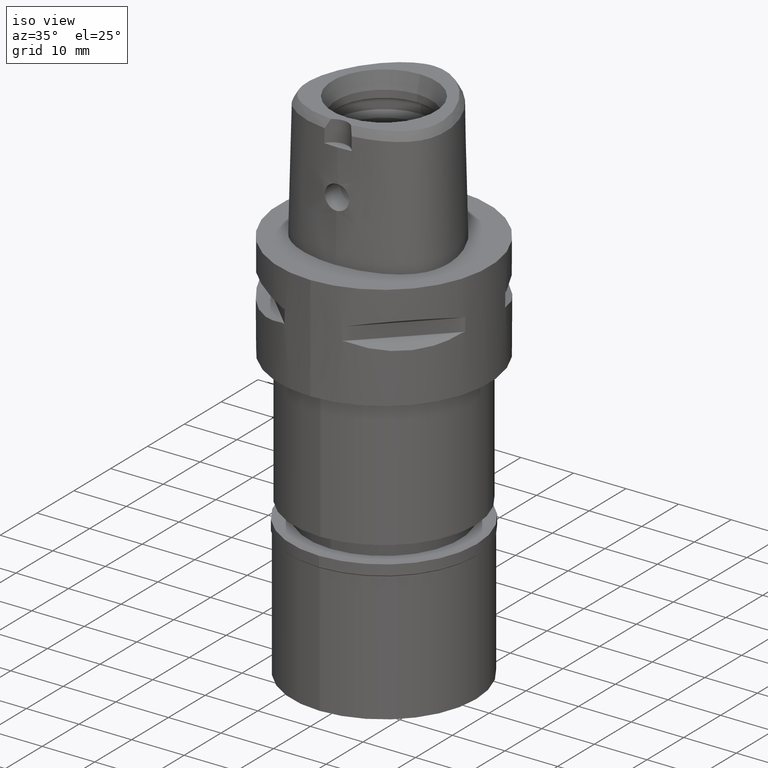
[diagram: clean part render]
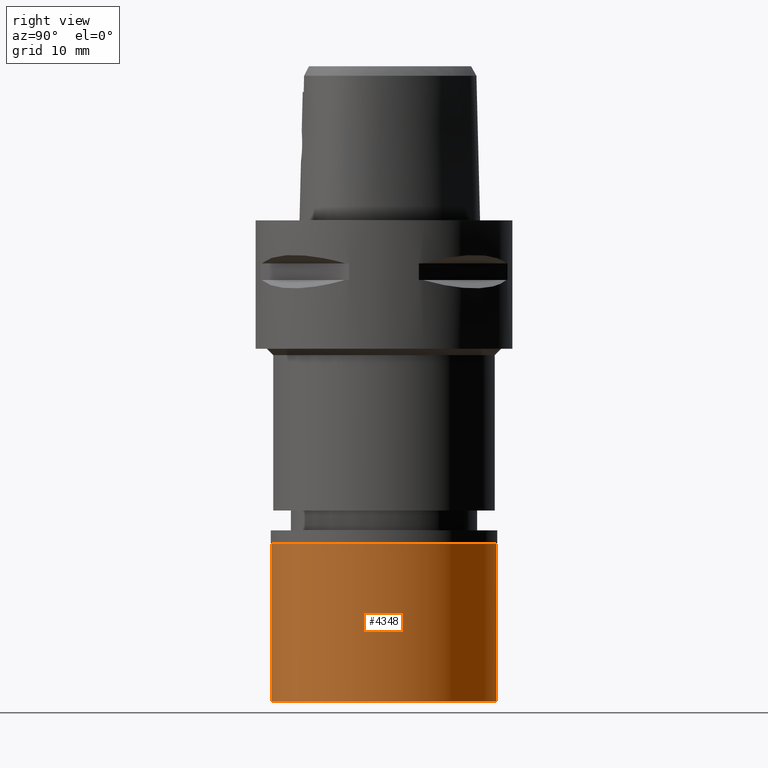
[diagram: tour spotlight — one face highlighted and labeled with its STEP entity id]
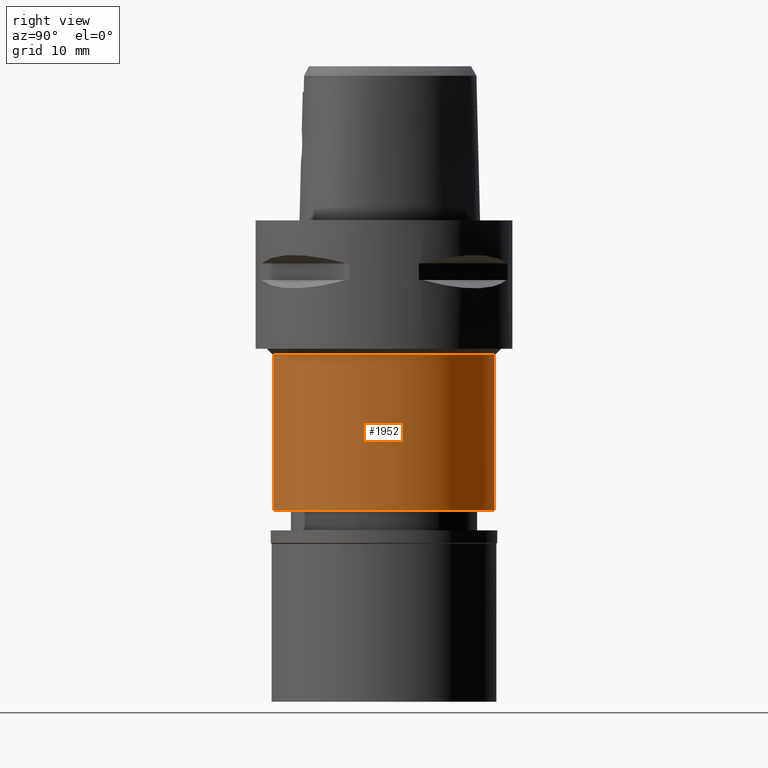
[diagram: tour spotlight — one face highlighted and labeled with its STEP entity id]
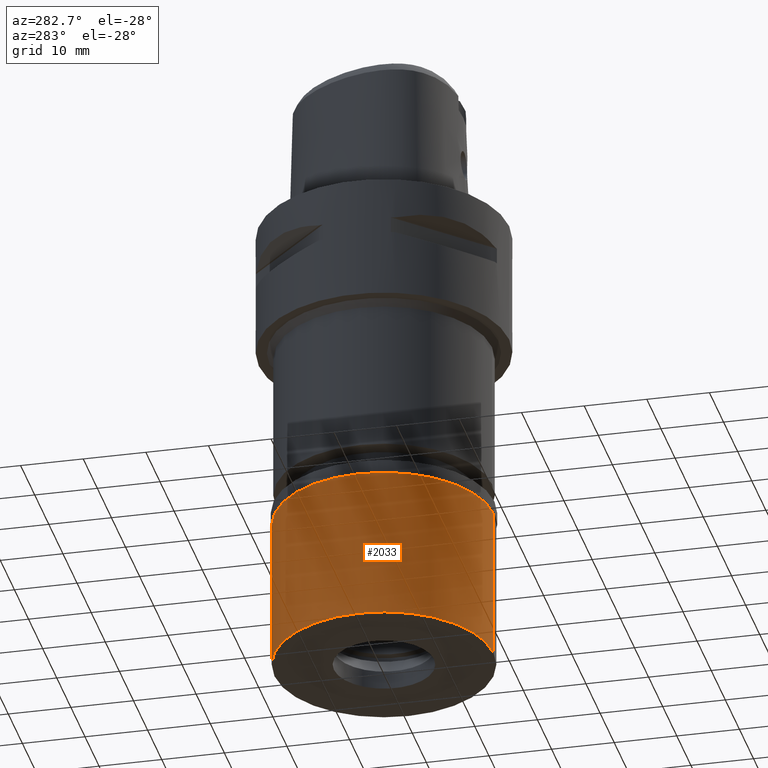
[diagram: tour spotlight — one face highlighted and labeled with its STEP entity id]
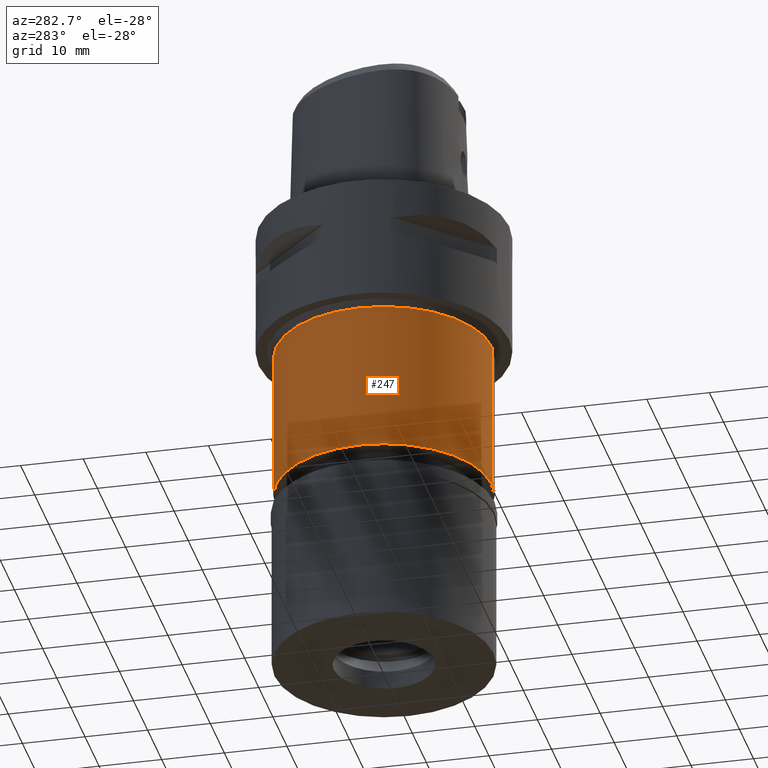
[diagram: tour spotlight — one face highlighted and labeled with its STEP entity id]
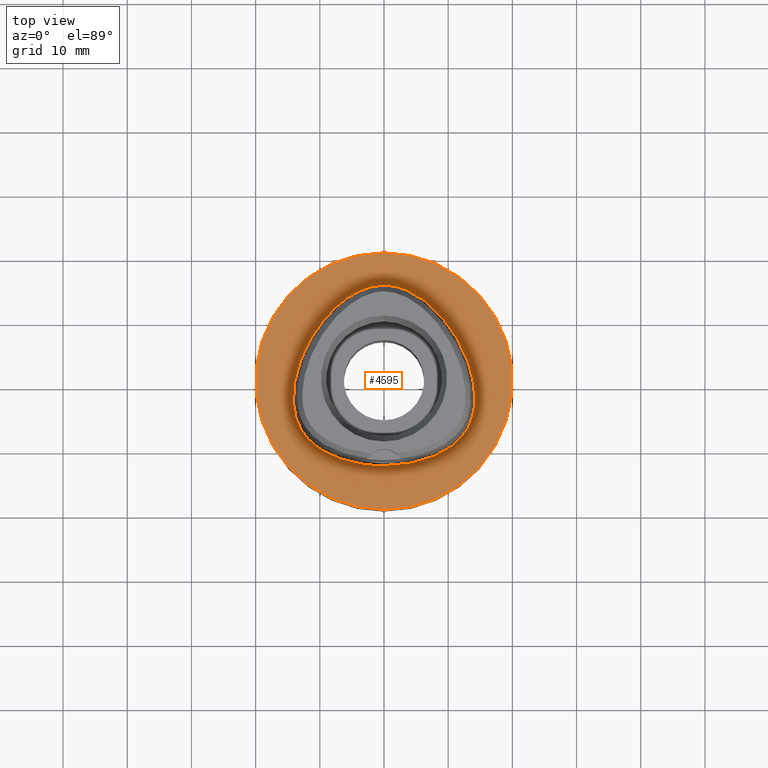
[diagram: tour spotlight — one face highlighted and labeled with its STEP entity id]
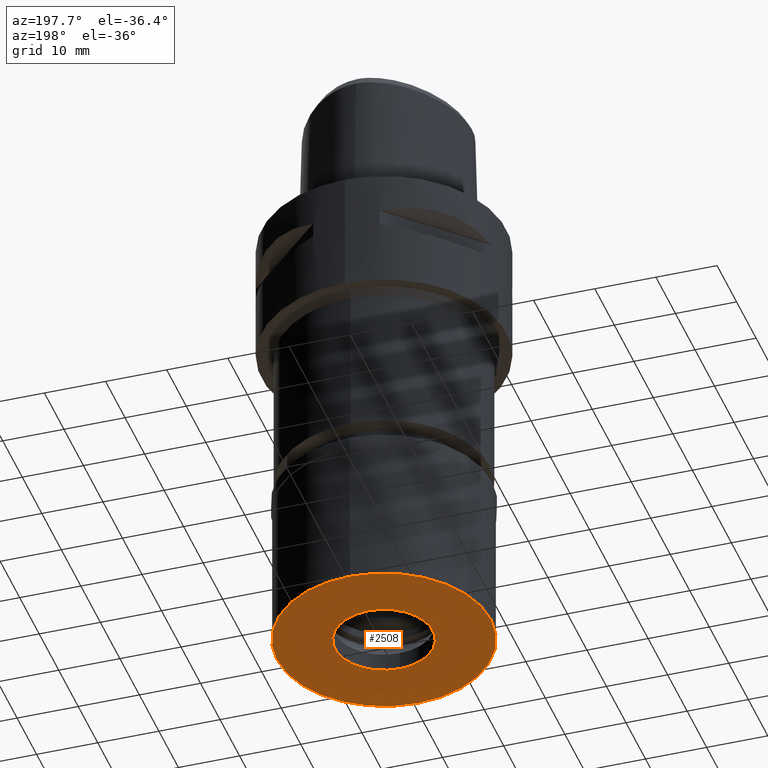
[diagram: tour spotlight — one face highlighted and labeled with its STEP entity id]
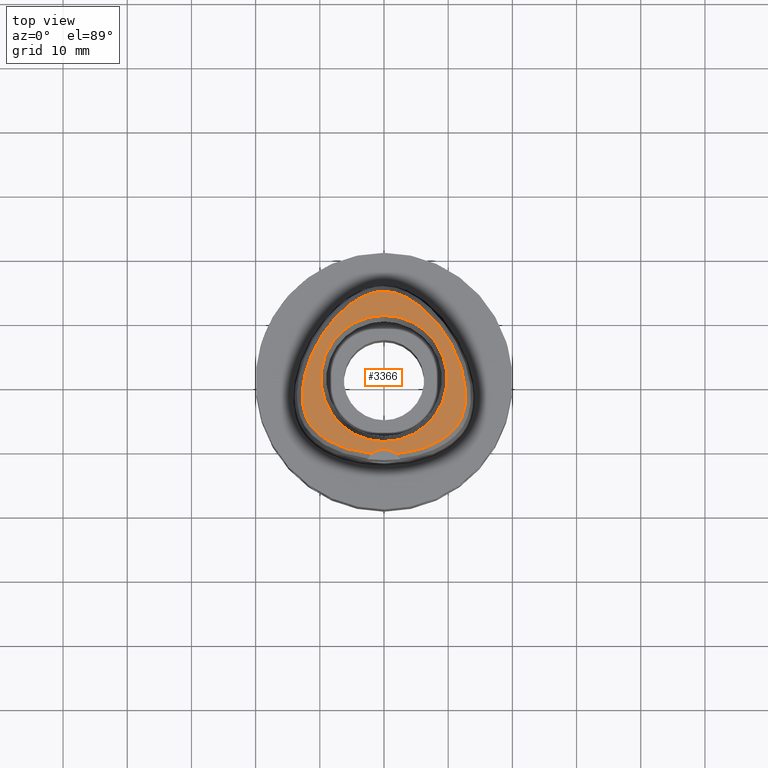
[diagram: tour spotlight — one face highlighted and labeled with its STEP entity id]
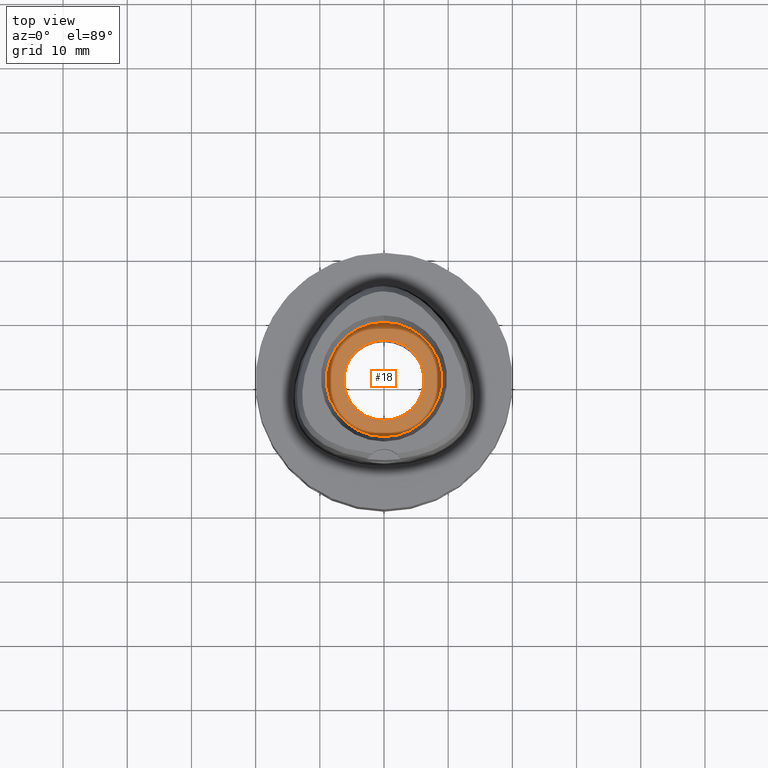
[diagram: tour spotlight — one face highlighted and labeled with its STEP entity id]
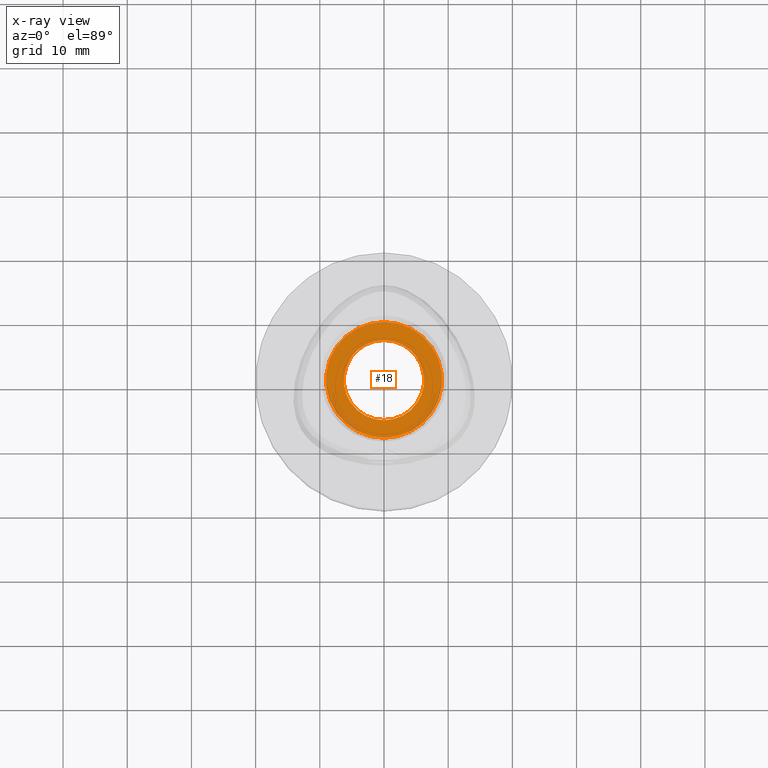
[diagram: x-ray of the same camera — body ghosted, this tour face saturated]
A machine part: a face-by-face anatomy tour. The part has 95 B-rep faces; the first image is the clean iso view, then the 8 largest visible faces are spotlighted one at a time (largest first), each with its STEP entity span.

Face 1 — right view, entity #4348. In plain terms, the highlighted cylindrical surface (partial cylindrical patch) has radius 17.5 mm, axis along (0, 0, -1).
Definition (entity closure, byte-faithful):
#294 = ORIENTED_EDGE ( 'NONE', *, *, #3732, .T. ) ;
#300 = DIRECTION ( 'NONE',  ( 0.0000000000000000000, 0.0000000000000000000, -1.000000000000000000 ) ) ;
#335 = DIRECTION ( 'NONE',  ( 0.0000000000000000000, -1.000000000000000000, 0.0000000000000000000 ) ) ;
#396 = AXIS2_PLACEMENT_3D ( 'NONE', #3628, #1329, #335 ) ;
#500 = DIRECTION ( 'NONE',  ( 0.0000000000000000000, 0.0000000000000000000, 1.000000000000000000 ) ) ;
#688 = VERTEX_POINT ( 'NONE', #4351 ) ;
#698 = FACE_OUTER_BOUND ( 'NONE', #1673, .T. ) ;
#843 = VERTEX_POINT ( 'NONE', #1810 ) ;
#1008 = LINE ( 'NONE', #3837, #2555 ) ;
#1185 = VECTOR ( 'NONE', #2618, 1000.000000000000000 ) ;
#1217 = ORIENTED_EDGE ( 'NONE', *, *, #2676, .T. ) ;
#1313 = EDGE_CURVE ( 'NONE', #2817, #4522, #1008, .T. ) ;
#1329 = DIRECTION ( 'NONE',  ( 0.0000000000000000000, 0.0000000000000000000, -1.000000000000000000 ) ) ;
#1425 = CIRCLE ( 'NONE', #1937, 17.50000000000000000 ) ;
#1494 = ORIENTED_EDGE ( 'NONE', *, *, #1313, .F. ) ;
#1673 = EDGE_LOOP ( 'NONE', ( #294, #1217, #2266, #1494 ) ) ;
#1810 = CARTESIAN_POINT ( 'NONE',  ( 0.0000000000000000000, -17.50000000000000000, -2.100000000000000089 ) ) ;
#1937 = AXIS2_PLACEMENT_3D ( 'NONE', #2263, #500, #2664 ) ;
#2117 = CYLINDRICAL_SURFACE ( 'NONE', #396, 17.50000000000000000 ) ;
#2263 = CARTESIAN_POINT ( 'NONE',  ( 0.0000000000000000000, 0.0000000000000000000, -26.70000000000000284 ) ) ;
#2266 = ORIENTED_EDGE ( 'NONE', *, *, #2538, .T. ) ;
#2538 = EDGE_CURVE ( 'NONE', #688, #4522, #1425, .T. ) ;
#2555 = VECTOR ( 'NONE', #4644, 1000.000000000000000 ) ;
#2618 = DIRECTION ( 'NONE',  ( 0.0000000000000000000, 0.0000000000000000000, -1.000000000000000000 ) ) ;
#2664 = DIRECTION ( 'NONE',  ( 0.0000000000000000000, -1.000000000000000000, 0.0000000000000000000 ) ) ;
#2676 = EDGE_CURVE ( 'NONE', #843, #688, #2994, .T. ) ;
#2817 = VERTEX_POINT ( 'NONE', #4613 ) ;
#2919 = CARTESIAN_POINT ( 'NONE',  ( 0.0000000000000000000, 17.50000000000000000, -26.70000000000000284 ) ) ;
#2994 = LINE ( 'NONE', #4453, #1185 ) ;
#3109 = AXIS2_PLACEMENT_3D ( 'NONE', #4364, #300, #3271 ) ;
#3271 = DIRECTION ( 'NONE',  ( 0.0000000000000000000, 1.000000000000000000, 0.0000000000000000000 ) ) ;
#3349 = CIRCLE ( 'NONE', #3109, 17.50000000000000000 ) ;
#3628 = CARTESIAN_POINT ( 'NONE',  ( 0.0000000000000000000, 0.0000000000000000000, 0.0000000000000000000 ) ) ;
#3732 = EDGE_CURVE ( 'NONE', #2817, #843, #3349, .T. ) ;
#3837 = CARTESIAN_POINT ( 'NONE',  ( 0.0000000000000000000, 17.50000000000000000, -2.100000000000000089 ) ) ;
#4348 = ADVANCED_FACE ( 'NONE', ( #698 ), #2117, .T. ) ;
#4351 = CARTESIAN_POINT ( 'NONE',  ( 0.0000000000000000000, -17.50000000000000000, -26.70000000000000284 ) ) ;
#4364 = CARTESIAN_POINT ( 'NONE',  ( 0.0000000000000000000, 0.0000000000000000000, -2.100000000000000089 ) ) ;
#4453 = CARTESIAN_POINT ( 'NONE',  ( 0.0000000000000000000, -17.50000000000000000, -2.100000000000000089 ) ) ;
#4522 = VERTEX_POINT ( 'NONE', #2919 ) ;
#4613 = CARTESIAN_POINT ( 'NONE',  ( 0.0000000000000000000, 17.50000000000000000, -2.100000000000000089 ) ) ;
#4644 = DIRECTION ( 'NONE',  ( 0.0000000000000000000, 0.0000000000000000000, -1.000000000000000000 ) ) ;

Face 2 — right view, entity #1952. In plain terms, the highlighted cylindrical surface (partial cylindrical patch) has radius 17.25 mm, axis along (0, 0, -1).
Definition (entity closure, byte-faithful):
#37 = CARTESIAN_POINT ( 'NONE',  ( 0.0000000000000000000, -17.25000000000000000, -21.00000000000000000 ) ) ;
#219 = VERTEX_POINT ( 'NONE', #1003 ) ;
#333 = LINE ( 'NONE', #2782, #4163 ) ;
#342 = ORIENTED_EDGE ( 'NONE', *, *, #1388, .T. ) ;
#674 = CARTESIAN_POINT ( 'NONE',  ( 0.0000000000000000000, 17.25000000000000000, -21.00000000000000000 ) ) ;
#802 = EDGE_CURVE ( 'NONE', #4314, #219, #333, .T. ) ;
#822 = DIRECTION ( 'NONE',  ( 0.0000000000000000000, -1.000000000000000000, 0.0000000000000000000 ) ) ;
#858 = EDGE_CURVE ( 'NONE', #1696, #219, #2095, .T. ) ;
#967 = DIRECTION ( 'NONE',  ( 0.0000000000000000000, 1.000000000000000000, 0.0000000000000000000 ) ) ;
#969 = DIRECTION ( 'NONE',  ( 0.0000000000000000000, -1.000000000000000000, 0.0000000000000000000 ) ) ;
#988 = VERTEX_POINT ( 'NONE', #37 ) ;
#1003 = CARTESIAN_POINT ( 'NONE',  ( 0.0000000000000000000, 17.25000000000000000, -45.19999999999999574 ) ) ;
#1128 = ORIENTED_EDGE ( 'NONE', *, *, #802, .F. ) ;
#1171 = CARTESIAN_POINT ( 'NONE',  ( 0.0000000000000000000, 1.263835496719999960E-14, 3.200000000000000178 ) ) ;
#1194 = CYLINDRICAL_SURFACE ( 'NONE', #1499, 17.25000000000000000 ) ;
#1327 = DIRECTION ( 'NONE',  ( 0.0000000000000000000, 0.0000000000000000000, 1.000000000000000000 ) ) ;
#1388 = EDGE_CURVE ( 'NONE', #988, #1696, #2256, .T. ) ;
#1424 = AXIS2_PLACEMENT_3D ( 'NONE', #2469, #3572, #967 ) ;
#1499 = AXIS2_PLACEMENT_3D ( 'NONE', #1171, #2623, #822 ) ;
#1562 = VECTOR ( 'NONE', #1772, 1000.000000000000000 ) ;
#1696 = VERTEX_POINT ( 'NONE', #3802 ) ;
#1740 = EDGE_CURVE ( 'NONE', #4314, #988, #2951, .T. ) ;
#1772 = DIRECTION ( 'NONE',  ( 0.0000000000000000000, 0.0000000000000000000, -1.000000000000000000 ) ) ;
#1952 = ADVANCED_FACE ( 'NONE', ( #3041 ), #1194, .T. ) ;
#2095 = CIRCLE ( 'NONE', #2624, 17.25000000000000000 ) ;
#2256 = LINE ( 'NONE', #2527, #1562 ) ;
#2469 = CARTESIAN_POINT ( 'NONE',  ( 0.0000000000000000000, 0.0000000000000000000, -21.00000000000000000 ) ) ;
#2527 = CARTESIAN_POINT ( 'NONE',  ( 0.0000000000000000000, -17.25000000000000000, -21.00000000000000000 ) ) ;
#2623 = DIRECTION ( 'NONE',  ( 0.0000000000000000000, 0.0000000000000000000, -1.000000000000000000 ) ) ;
#2624 = AXIS2_PLACEMENT_3D ( 'NONE', #3283, #1327, #969 ) ;
#2782 = CARTESIAN_POINT ( 'NONE',  ( 0.0000000000000000000, 17.25000000000000000, -21.00000000000000000 ) ) ;
#2951 = CIRCLE ( 'NONE', #1424, 17.25000000000000000 ) ;
#3041 = FACE_OUTER_BOUND ( 'NONE', #4606, .T. ) ;
#3160 = ORIENTED_EDGE ( 'NONE', *, *, #1740, .T. ) ;
#3203 = DIRECTION ( 'NONE',  ( 0.0000000000000000000, 0.0000000000000000000, -1.000000000000000000 ) ) ;
#3283 = CARTESIAN_POINT ( 'NONE',  ( 0.0000000000000000000, 1.263835496719999960E-14, -45.19999999999999574 ) ) ;
#3572 = DIRECTION ( 'NONE',  ( 0.0000000000000000000, 0.0000000000000000000, -1.000000000000000000 ) ) ;
#3802 = CARTESIAN_POINT ( 'NONE',  ( 0.0000000000000000000, -17.25000000000000000, -45.19999999999999574 ) ) ;
#4100 = ORIENTED_EDGE ( 'NONE', *, *, #858, .T. ) ;
#4163 = VECTOR ( 'NONE', #3203, 1000.000000000000000 ) ;
#4314 = VERTEX_POINT ( 'NONE', #674 ) ;
#4606 = EDGE_LOOP ( 'NONE', ( #3160, #342, #4100, #1128 ) ) ;

Face 3 — auxiliary view, entity #2033. In plain terms, the highlighted cylindrical surface (partial cylindrical patch) has radius 17.5 mm, axis along (0, 0, -1).
Definition (entity closure, byte-faithful):
#284 = EDGE_CURVE ( 'NONE', #843, #2817, #3864, .T. ) ;
#299 = DIRECTION ( 'NONE',  ( 0.0000000000000000000, 0.0000000000000000000, -1.000000000000000000 ) ) ;
#434 = AXIS2_PLACEMENT_3D ( 'NONE', #635, #299, #2482 ) ;
#635 = CARTESIAN_POINT ( 'NONE',  ( 0.0000000000000000000, 0.0000000000000000000, 0.0000000000000000000 ) ) ;
#688 = VERTEX_POINT ( 'NONE', #4351 ) ;
#843 = VERTEX_POINT ( 'NONE', #1810 ) ;
#1008 = LINE ( 'NONE', #3837, #2555 ) ;
#1045 = AXIS2_PLACEMENT_3D ( 'NONE', #3008, #4447, #4469 ) ;
#1185 = VECTOR ( 'NONE', #2618, 1000.000000000000000 ) ;
#1266 = ORIENTED_EDGE ( 'NONE', *, *, #284, .T. ) ;
#1313 = EDGE_CURVE ( 'NONE', #2817, #4522, #1008, .T. ) ;
#1339 = ORIENTED_EDGE ( 'NONE', *, *, #2676, .F. ) ;
#1340 = FACE_OUTER_BOUND ( 'NONE', #3197, .T. ) ;
#1810 = CARTESIAN_POINT ( 'NONE',  ( 0.0000000000000000000, -17.50000000000000000, -2.100000000000000089 ) ) ;
#2033 = ADVANCED_FACE ( 'NONE', ( #1340 ), #3894, .T. ) ;
#2417 = CARTESIAN_POINT ( 'NONE',  ( 0.0000000000000000000, 0.0000000000000000000, -26.70000000000000284 ) ) ;
#2482 = DIRECTION ( 'NONE',  ( 0.0000000000000000000, -1.000000000000000000, 0.0000000000000000000 ) ) ;
#2555 = VECTOR ( 'NONE', #4644, 1000.000000000000000 ) ;
#2563 = AXIS2_PLACEMENT_3D ( 'NONE', #2417, #3169, #4634 ) ;
#2618 = DIRECTION ( 'NONE',  ( 0.0000000000000000000, 0.0000000000000000000, -1.000000000000000000 ) ) ;
#2676 = EDGE_CURVE ( 'NONE', #843, #688, #2994, .T. ) ;
#2790 = CIRCLE ( 'NONE', #2563, 17.50000000000000000 ) ;
#2817 = VERTEX_POINT ( 'NONE', #4613 ) ;
#2919 = CARTESIAN_POINT ( 'NONE',  ( 0.0000000000000000000, 17.50000000000000000, -26.70000000000000284 ) ) ;
#2994 = LINE ( 'NONE', #4453, #1185 ) ;
#3008 = CARTESIAN_POINT ( 'NONE',  ( 0.0000000000000000000, 0.0000000000000000000, -2.100000000000000089 ) ) ;
#3169 = DIRECTION ( 'NONE',  ( 0.0000000000000000000, 0.0000000000000000000, 1.000000000000000000 ) ) ;
#3197 = EDGE_LOOP ( 'NONE', ( #4235, #1339, #1266, #3667 ) ) ;
#3333 = EDGE_CURVE ( 'NONE', #4522, #688, #2790, .T. ) ;
#3667 = ORIENTED_EDGE ( 'NONE', *, *, #1313, .T. ) ;
#3837 = CARTESIAN_POINT ( 'NONE',  ( 0.0000000000000000000, 17.50000000000000000, -2.100000000000000089 ) ) ;
#3864 = CIRCLE ( 'NONE', #1045, 17.50000000000000000 ) ;
#3894 = CYLINDRICAL_SURFACE ( 'NONE', #434, 17.50000000000000000 ) ;
#4235 = ORIENTED_EDGE ( 'NONE', *, *, #3333, .T. ) ;
#4351 = CARTESIAN_POINT ( 'NONE',  ( 0.0000000000000000000, -17.50000000000000000, -26.70000000000000284 ) ) ;
#4447 = DIRECTION ( 'NONE',  ( 0.0000000000000000000, 0.0000000000000000000, -1.000000000000000000 ) ) ;
#4453 = CARTESIAN_POINT ( 'NONE',  ( 0.0000000000000000000, -17.50000000000000000, -2.100000000000000089 ) ) ;
#4469 = DIRECTION ( 'NONE',  ( 0.0000000000000000000, -1.000000000000000000, 0.0000000000000000000 ) ) ;
#4522 = VERTEX_POINT ( 'NONE', #2919 ) ;
#4613 = CARTESIAN_POINT ( 'NONE',  ( 0.0000000000000000000, 17.50000000000000000, -2.100000000000000089 ) ) ;
#4634 = DIRECTION ( 'NONE',  ( 0.0000000000000000000, 1.000000000000000000, 0.0000000000000000000 ) ) ;
#4644 = DIRECTION ( 'NONE',  ( 0.0000000000000000000, 0.0000000000000000000, -1.000000000000000000 ) ) ;

Face 4 — auxiliary view, entity #247. In plain terms, the highlighted cylindrical surface (partial cylindrical patch) has radius 17.25 mm, axis along (0, 0, -1).
Definition (entity closure, byte-faithful):
#37 = CARTESIAN_POINT ( 'NONE',  ( 0.0000000000000000000, -17.25000000000000000, -21.00000000000000000 ) ) ;
#219 = VERTEX_POINT ( 'NONE', #1003 ) ;
#247 = ADVANCED_FACE ( 'NONE', ( #1770 ), #3233, .T. ) ;
#333 = LINE ( 'NONE', #2782, #4163 ) ;
#517 = CIRCLE ( 'NONE', #2578, 17.25000000000000000 ) ;
#674 = CARTESIAN_POINT ( 'NONE',  ( 0.0000000000000000000, 17.25000000000000000, -21.00000000000000000 ) ) ;
#802 = EDGE_CURVE ( 'NONE', #4314, #219, #333, .T. ) ;
#987 = CARTESIAN_POINT ( 'NONE',  ( 0.0000000000000000000, 0.0000000000000000000, -21.00000000000000000 ) ) ;
#988 = VERTEX_POINT ( 'NONE', #37 ) ;
#1003 = CARTESIAN_POINT ( 'NONE',  ( 0.0000000000000000000, 17.25000000000000000, -45.19999999999999574 ) ) ;
#1005 = ORIENTED_EDGE ( 'NONE', *, *, #2278, .T. ) ;
#1388 = EDGE_CURVE ( 'NONE', #988, #1696, #2256, .T. ) ;
#1469 = DIRECTION ( 'NONE',  ( 0.0000000000000000000, 1.000000000000000000, 0.0000000000000000000 ) ) ;
#1516 = DIRECTION ( 'NONE',  ( 0.0000000000000000000, 0.0000000000000000000, 1.000000000000000000 ) ) ;
#1562 = VECTOR ( 'NONE', #1772, 1000.000000000000000 ) ;
#1696 = VERTEX_POINT ( 'NONE', #3802 ) ;
#1770 = FACE_OUTER_BOUND ( 'NONE', #2444, .T. ) ;
#1772 = DIRECTION ( 'NONE',  ( 0.0000000000000000000, 0.0000000000000000000, -1.000000000000000000 ) ) ;
#1878 = CIRCLE ( 'NONE', #3344, 17.25000000000000000 ) ;
#2256 = LINE ( 'NONE', #2527, #1562 ) ;
#2278 = EDGE_CURVE ( 'NONE', #219, #1696, #1878, .T. ) ;
#2438 = DIRECTION ( 'NONE',  ( 0.0000000000000000000, 0.0000000000000000000, -1.000000000000000000 ) ) ;
#2444 = EDGE_LOOP ( 'NONE', ( #1005, #3122, #4658, #3238 ) ) ;
#2527 = CARTESIAN_POINT ( 'NONE',  ( 0.0000000000000000000, -17.25000000000000000, -21.00000000000000000 ) ) ;
#2556 = CARTESIAN_POINT ( 'NONE',  ( 0.0000000000000000000, 1.263835496719999960E-14, -45.19999999999999574 ) ) ;
#2578 = AXIS2_PLACEMENT_3D ( 'NONE', #987, #2438, #3193 ) ;
#2782 = CARTESIAN_POINT ( 'NONE',  ( 0.0000000000000000000, 17.25000000000000000, -21.00000000000000000 ) ) ;
#2864 = CARTESIAN_POINT ( 'NONE',  ( 0.0000000000000000000, 1.263835496719999960E-14, 3.200000000000000178 ) ) ;
#3122 = ORIENTED_EDGE ( 'NONE', *, *, #1388, .F. ) ;
#3193 = DIRECTION ( 'NONE',  ( 0.0000000000000000000, -1.000000000000000000, 0.0000000000000000000 ) ) ;
#3203 = DIRECTION ( 'NONE',  ( 0.0000000000000000000, 0.0000000000000000000, -1.000000000000000000 ) ) ;
#3233 = CYLINDRICAL_SURFACE ( 'NONE', #4334, 17.25000000000000000 ) ;
#3238 = ORIENTED_EDGE ( 'NONE', *, *, #802, .T. ) ;
#3344 = AXIS2_PLACEMENT_3D ( 'NONE', #2556, #1516, #1469 ) ;
#3353 = DIRECTION ( 'NONE',  ( 0.0000000000000000000, -1.000000000000000000, 0.0000000000000000000 ) ) ;
#3802 = CARTESIAN_POINT ( 'NONE',  ( 0.0000000000000000000, -17.25000000000000000, -45.19999999999999574 ) ) ;
#4163 = VECTOR ( 'NONE', #3203, 1000.000000000000000 ) ;
#4314 = VERTEX_POINT ( 'NONE', #674 ) ;
#4334 = AXIS2_PLACEMENT_3D ( 'NONE', #2864, #4335, #3353 ) ;
#4335 = DIRECTION ( 'NONE',  ( 0.0000000000000000000, 0.0000000000000000000, -1.000000000000000000 ) ) ;
#4635 = EDGE_CURVE ( 'NONE', #988, #4314, #517, .T. ) ;
#4658 = ORIENTED_EDGE ( 'NONE', *, *, #4635, .T. ) ;

Face 5 — top view, entity #4595. In plain terms, the highlighted planar face has unit normal (0, 0, -1).
Definition (entity closure, byte-faithful):
#178 = CARTESIAN_POINT ( 'NONE',  ( 13.73754042376662099, -5.736583205906158334, -3.900541807946855677E-07 ) ) ;
#205 = CARTESIAN_POINT ( 'NONE',  ( 13.34121472258864038, -6.760328910218635912, -3.900541807946855677E-07 ) ) ;
#212 = B_SPLINE_CURVE_WITH_KNOTS ( 'NONE', 3,
 ( #3782, #4516, #562, #3516, #2344, #3075, #234, #916, #538, #205, #178, #1637, #4538, #1302, #3098, #3151, #1226, #2658, #3803, #1615, #4564, #1273 ),
 .UNSPECIFIED., .F., .F.,
 ( 4, 1, 1, 1, 1, 1, 1, 1, 1, 1, 1, 1, 1, 1, 1, 1, 1, 1, 1, 4 ),
 ( 0.0000000000000000000, 0.08333333333314001112, 0.1666666666663000063, 0.2083333333328000192, 0.2499999999994000077, 0.2916666666659999962, 0.3124999999992999489, 0.3333333333325000369, 0.3541666666659000207, 0.3749999999990999977, 0.4166666666657000140, 0.4583333333321999992, 0.4999999999987999599, 0.5833333333318999614, 0.6666666666650999939, 0.7499999999983000265, 0.8333333333314000280, 0.9166666666646000605, 0.9583333333311000457, 1.000000000000000000 ),
 .UNSPECIFIED. ) ;
#234 = CARTESIAN_POINT ( 'NONE',  ( 11.83679699912663175, -9.028767389546919375, -3.900541807946855677E-07 ) ) ;
#384 = CARTESIAN_POINT ( 'NONE',  ( 1.395836783632000027E-10, 14.96299999995999919, 2.777037858929000335E-13 ) ) ;
#538 = CARTESIAN_POINT ( 'NONE',  ( 12.97089752338696478, -7.488751176760295891, -3.900541807946855677E-07 ) ) ;
#562 = CARTESIAN_POINT ( 'NONE',  ( 4.043386009453403318, -12.92392500964944801, -3.900541807946855677E-07 ) ) ;
#599 = EDGE_CURVE ( 'NONE', #1960, #1349, #212, .T. ) ;
#638 = PLANE ( 'NONE',  #3298 ) ;
#673 = CARTESIAN_POINT ( 'NONE',  ( -11.50301490204149957, 6.641268750185789216, -1.475856378297182858E-08 ) ) ;
#715 = CARTESIAN_POINT ( 'NONE',  ( -13.21414037081528292, 2.960287500126357330, -1.475856378297182858E-08 ) ) ;
#766 = CARTESIAN_POINT ( 'NONE',  ( -14.17320396628316104, -2.619206249997343861, -1.475856378297182858E-08 ) ) ;
#777 = CIRCLE ( 'NONE', #1290, 20.00000000000000000 ) ;
#807 = DIRECTION ( 'NONE',  ( 0.0000000000000000000, 1.000000000000000000, 0.0000000000000000000 ) ) ;
#825 = B_SPLINE_CURVE_WITH_KNOTS ( 'NONE', 3,
 ( #384, #2861, #2471, #2567, #4047, #4330, #673, #715, #2918, #766, #3647, #2116, #3253, #1048, #3053, #3627, #1918, #4490, #4464, #869, #1178, #3028 ),
 .UNSPECIFIED., .F., .F.,
 ( 4, 1, 1, 1, 1, 1, 1, 1, 1, 1, 1, 1, 1, 1, 1, 1, 1, 1, 1, 4 ),
 ( 0.0000000000000000000, 0.04166666667009000236, 0.08333333333660000730, 0.1666666666697000088, 0.2500000000027000069, 0.3333333333357000328, 0.4166666666688000342, 0.5000000000018000046, 0.5416666666684000209, 0.5833333333347999750, 0.6250000000013999912, 0.6458333333346000238, 0.6666666666680000075, 0.6875000000012000401, 0.7083333333343999616, 0.7500000000009999779, 0.7916666666675000741, 0.8333333333340000593, 0.9166666666671000607, 1.000000000000000000 ),
 .UNSPECIFIED. ) ;
#869 = CARTESIAN_POINT ( 'NONE',  ( -4.043386007794314452, -12.92392500037023950, -1.475856378297182858E-08 ) ) ;
#897 = DIRECTION ( 'NONE',  ( 0.0000000000000000000, -1.000000000000000000, 0.0000000000000000000 ) ) ;
#916 = CARTESIAN_POINT ( 'NONE',  ( 12.52522393548120760, -8.173666411995275993, -3.900541807946855677E-07 ) ) ;
#930 = FACE_BOUND ( 'NONE', #4248, .T. ) ;
#953 = AXIS2_PLACEMENT_3D ( 'NONE', #3655, #1437, #807 ) ;
#1048 = CARTESIAN_POINT ( 'NONE',  ( -12.97089751524858059, -7.488751172059896710, -1.475856378297182858E-08 ) ) ;
#1178 = CARTESIAN_POINT ( 'NONE',  ( -1.347795335935797922, -13.16300000036725670, -1.475856378297182858E-08 ) ) ;
#1226 = CARTESIAN_POINT ( 'NONE',  ( 9.170754370236878117, 9.963637506321751047, -3.900541807946855677E-07 ) ) ;
#1251 = CARTESIAN_POINT ( 'NONE',  ( 0.0000000000000000000, 1.263835496719999960E-14, 1.110223024624999873E-14 ) ) ;
#1273 = CARTESIAN_POINT ( 'NONE',  ( 1.395836783632000027E-10, 14.96299999995999919, 2.777037858929000335E-13 ) ) ;
#1283 = CARTESIAN_POINT ( 'NONE',  ( 1.395836783632000027E-10, 14.96299999995999919, 2.777037858929000335E-13 ) ) ;
#1290 = AXIS2_PLACEMENT_3D ( 'NONE', #1251, #4182, #897 ) ;
#1302 = CARTESIAN_POINT ( 'NONE',  ( 14.00068088981734249, -0.1863062482826050303, -3.900541807946855677E-07 ) ) ;
#1349 = VERTEX_POINT ( 'NONE', #1283 ) ;
#1437 = DIRECTION ( 'NONE',  ( 0.0000000000000000000, 0.0000000000000000000, -1.000000000000000000 ) ) ;
#1615 = CARTESIAN_POINT ( 'NONE',  ( 1.631981574167487681, 14.84698125959621429, -3.900541807946855677E-07 ) ) ;
#1637 = CARTESIAN_POINT ( 'NONE',  ( 14.05597390555121606, -4.368733595133075021, -3.900541807946855677E-07 ) ) ;
#1665 = EDGE_CURVE ( 'NONE', #3991, #3569, #1805, .T. ) ;
#1805 = CIRCLE ( 'NONE', #953, 20.00000000000000000 ) ;
#1918 = CARTESIAN_POINT ( 'NONE',  ( -10.81142122272220263, -9.988463672166119522, -1.475856378297182858E-08 ) ) ;
#1960 = VERTEX_POINT ( 'NONE', #2267 ) ;
#2002 = CARTESIAN_POINT ( 'NONE',  ( 0.0000000000000000000, 1.224646799146999965E-14, 0.0000000000000000000 ) ) ;
#2100 = EDGE_LOOP ( 'NONE', ( #2261, #4110 ) ) ;
#2116 = CARTESIAN_POINT ( 'NONE',  ( -13.73754041474015075, -5.736583203229367989, -1.475856378297182858E-08 ) ) ;
#2261 = ORIENTED_EDGE ( 'NONE', *, *, #1665, .F. ) ;
#2267 = CARTESIAN_POINT ( 'NONE',  ( -1.399837041540999886E-14, -13.16299999999999848, 2.770746595122999794E-13 ) ) ;
#2344 = CARTESIAN_POINT ( 'NONE',  ( 9.354901138038872688, -10.96475157100398690, -3.900541807946855677E-07 ) ) ;
#2471 = CARTESIAN_POINT ( 'NONE',  ( -1.631981572237633404, 14.84698125036252492, -1.475856378297182858E-08 ) ) ;
#2492 = ORIENTED_EDGE ( 'NONE', *, *, #2953, .F. ) ;
#2567 = CARTESIAN_POINT ( 'NONE',  ( -3.782076373942980574, 14.19393593783074081, -1.475856378297182858E-08 ) ) ;
#2658 = CARTESIAN_POINT ( 'NONE',  ( 6.372642527166862969, 12.66899063273053905, -3.900541807946855677E-07 ) ) ;
#2861 = CARTESIAN_POINT ( 'NONE',  ( -0.5439938573669350630, 14.96300000037487443, -1.475856378297182858E-08 ) ) ;
#2918 = CARTESIAN_POINT ( 'NONE',  ( -14.00068088052812421, -0.1863062499349895373, -1.475856378297182858E-08 ) ) ;
#2953 = EDGE_CURVE ( 'NONE', #1349, #1960, #825, .T. ) ;
#3028 = CARTESIAN_POINT ( 'NONE',  ( -1.399837041540999886E-14, -13.16299999999999848, 2.770746595122999794E-13 ) ) ;
#3053 = CARTESIAN_POINT ( 'NONE',  ( -12.52522392788794470, -8.173666406467122059, -1.475856378297182858E-08 ) ) ;
#3071 = CARTESIAN_POINT ( 'NONE',  ( 0.0000000000000000000, 20.00000000000000000, 1.110223024624999873E-14 ) ) ;
#3075 = CARTESIAN_POINT ( 'NONE',  ( 10.81142122852691756, -9.988463679579663079, -3.900541807946855677E-07 ) ) ;
#3098 = CARTESIAN_POINT ( 'NONE',  ( 13.21414037968383859, 2.960287503333003833, -3.900541807946855677E-07 ) ) ;
#3151 = CARTESIAN_POINT ( 'NONE',  ( 11.50301491020927891, 6.641268754898862703, -3.900541807946855677E-07 ) ) ;
#3253 = CARTESIAN_POINT ( 'NONE',  ( -13.34121471400117187, -6.760328906400068227, -1.475856378297182858E-08 ) ) ;
#3279 = CARTESIAN_POINT ( 'NONE',  ( 0.0000000000000000000, -20.00000000000000000, 1.110223024624999873E-14 ) ) ;
#3298 = AXIS2_PLACEMENT_3D ( 'NONE', #2002, #3476, #4246 ) ;
#3476 = DIRECTION ( 'NONE',  ( 0.0000000000000000000, 0.0000000000000000000, -1.000000000000000000 ) ) ;
#3516 = CARTESIAN_POINT ( 'NONE',  ( 7.161686388804775483, -12.03179219671646827, -3.900541807946855677E-07 ) ) ;
#3569 = VERTEX_POINT ( 'NONE', #3279 ) ;
#3604 = ORIENTED_EDGE ( 'NONE', *, *, #599, .F. ) ;
#3627 = CARTESIAN_POINT ( 'NONE',  ( -11.83679699228726356, -9.028767383067311414, -1.475856378297182858E-08 ) ) ;
#3647 = CARTESIAN_POINT ( 'NONE',  ( -14.05597389623452820, -4.368733593802287096, -1.475856378297182858E-08 ) ) ;
#3655 = CARTESIAN_POINT ( 'NONE',  ( 0.0000000000000000000, 1.263835496719999960E-14, 1.110223024624999873E-14 ) ) ;
#3782 = CARTESIAN_POINT ( 'NONE',  ( -1.399837041540999886E-14, -13.16299999999999848, 2.770746595122999794E-13 ) ) ;
#3803 = CARTESIAN_POINT ( 'NONE',  ( 3.782076377980236881, 14.19393594641559631, -3.900541807946855677E-07 ) ) ;
#3991 = VERTEX_POINT ( 'NONE', #3071 ) ;
#4047 = CARTESIAN_POINT ( 'NONE',  ( -6.372642521318883091, 12.66899062529355291, -1.475856378297182858E-08 ) ) ;
#4110 = ORIENTED_EDGE ( 'NONE', *, *, #4195, .F. ) ;
#4182 = DIRECTION ( 'NONE',  ( 0.0000000000000000000, 0.0000000000000000000, -1.000000000000000000 ) ) ;
#4195 = EDGE_CURVE ( 'NONE', #3569, #3991, #777, .T. ) ;
#4246 = DIRECTION ( 'NONE',  ( 0.0000000000000000000, -1.000000000000000000, 0.0000000000000000000 ) ) ;
#4248 = EDGE_LOOP ( 'NONE', ( #2492, #3604 ) ) ;
#4330 = CARTESIAN_POINT ( 'NONE',  ( -9.170754363024274269, 9.963637500239041600, -1.475856378297182858E-08 ) ) ;
#4464 = CARTESIAN_POINT ( 'NONE',  ( -7.161686385591480963, -12.03179218785227178, -1.475856378297182858E-08 ) ) ;
#4490 = CARTESIAN_POINT ( 'NONE',  ( -9.354901133390740142, -10.96475156281565511, -1.475856378297182858E-08 ) ) ;
#4516 = CARTESIAN_POINT ( 'NONE',  ( 1.347795336486731888, -13.16300000974633022, -3.900541807946856206E-07 ) ) ;
#4538 = CARTESIAN_POINT ( 'NONE',  ( 14.17320397569519130, -2.619206249931181674, -3.900541807946855677E-07 ) ) ;
#4564 = CARTESIAN_POINT ( 'NONE',  ( 0.5439938580388543610, 14.96300000976096634, -3.900541807946855677E-07 ) ) ;
#4595 = ADVANCED_FACE ( 'NONE', ( #4627, #930 ), #638, .F. ) ;
#4627 = FACE_OUTER_BOUND ( 'NONE', #2100, .T. ) ;

Face 6 — auxiliary view, entity #2508. In plain terms, the highlighted planar face has unit normal (0, 0, -1).
Definition (entity closure, byte-faithful):
#88 = EDGE_CURVE ( 'NONE', #3011, #145, #2631, .T. ) ;
#145 = VERTEX_POINT ( 'NONE', #628 ) ;
#163 = CARTESIAN_POINT ( 'NONE',  ( 0.0000000000000000000, 0.0000000000000000000, -26.70000000000000284 ) ) ;
#500 = DIRECTION ( 'NONE',  ( 0.0000000000000000000, 0.0000000000000000000, 1.000000000000000000 ) ) ;
#586 = AXIS2_PLACEMENT_3D ( 'NONE', #1511, #1462, #3969 ) ;
#628 = CARTESIAN_POINT ( 'NONE',  ( 0.0000000000000000000, -8.000000000000000000, -26.70000000000000284 ) ) ;
#688 = VERTEX_POINT ( 'NONE', #4351 ) ;
#811 = AXIS2_PLACEMENT_3D ( 'NONE', #163, #1233, #817 ) ;
#817 = DIRECTION ( 'NONE',  ( 0.0000000000000000000, -1.000000000000000000, 0.0000000000000000000 ) ) ;
#1233 = DIRECTION ( 'NONE',  ( 0.0000000000000000000, 0.0000000000000000000, -1.000000000000000000 ) ) ;
#1425 = CIRCLE ( 'NONE', #1937, 17.50000000000000000 ) ;
#1462 = DIRECTION ( 'NONE',  ( 0.0000000000000000000, 0.0000000000000000000, -1.000000000000000000 ) ) ;
#1511 = CARTESIAN_POINT ( 'NONE',  ( 0.0000000000000000000, 0.0000000000000000000, -26.70000000000000284 ) ) ;
#1540 = ORIENTED_EDGE ( 'NONE', *, *, #2735, .F. ) ;
#1937 = AXIS2_PLACEMENT_3D ( 'NONE', #2263, #500, #2664 ) ;
#2119 = DIRECTION ( 'NONE',  ( 0.0000000000000000000, 0.0000000000000000000, -1.000000000000000000 ) ) ;
#2229 = EDGE_LOOP ( 'NONE', ( #3477, #2616 ) ) ;
#2263 = CARTESIAN_POINT ( 'NONE',  ( 0.0000000000000000000, 0.0000000000000000000, -26.70000000000000284 ) ) ;
#2302 = FACE_OUTER_BOUND ( 'NONE', #2229, .T. ) ;
#2417 = CARTESIAN_POINT ( 'NONE',  ( 0.0000000000000000000, 0.0000000000000000000, -26.70000000000000284 ) ) ;
#2508 = ADVANCED_FACE ( 'NONE', ( #2302, #4122 ), #3423, .T. ) ;
#2538 = EDGE_CURVE ( 'NONE', #688, #4522, #1425, .T. ) ;
#2563 = AXIS2_PLACEMENT_3D ( 'NONE', #2417, #3169, #4634 ) ;
#2616 = ORIENTED_EDGE ( 'NONE', *, *, #2538, .F. ) ;
#2631 = CIRCLE ( 'NONE', #4554, 8.000000000000000000 ) ;
#2664 = DIRECTION ( 'NONE',  ( 0.0000000000000000000, -1.000000000000000000, 0.0000000000000000000 ) ) ;
#2735 = EDGE_CURVE ( 'NONE', #145, #3011, #3962, .T. ) ;
#2790 = CIRCLE ( 'NONE', #2563, 17.50000000000000000 ) ;
#2919 = CARTESIAN_POINT ( 'NONE',  ( 0.0000000000000000000, 17.50000000000000000, -26.70000000000000284 ) ) ;
#3011 = VERTEX_POINT ( 'NONE', #4088 ) ;
#3169 = DIRECTION ( 'NONE',  ( 0.0000000000000000000, 0.0000000000000000000, 1.000000000000000000 ) ) ;
#3333 = EDGE_CURVE ( 'NONE', #4522, #688, #2790, .T. ) ;
#3423 = PLANE ( 'NONE',  #811 ) ;
#3477 = ORIENTED_EDGE ( 'NONE', *, *, #3333, .F. ) ;
#3750 = ORIENTED_EDGE ( 'NONE', *, *, #88, .F. ) ;
#3916 = EDGE_LOOP ( 'NONE', ( #3750, #1540 ) ) ;
#3962 = CIRCLE ( 'NONE', #586, 8.000000000000000000 ) ;
#3969 = DIRECTION ( 'NONE',  ( 0.0000000000000000000, -1.000000000000000000, 0.0000000000000000000 ) ) ;
#4088 = CARTESIAN_POINT ( 'NONE',  ( 0.0000000000000000000, 8.000000000000000000, -26.70000000000000284 ) ) ;
#4122 = FACE_BOUND ( 'NONE', #3916, .T. ) ;
#4351 = CARTESIAN_POINT ( 'NONE',  ( 0.0000000000000000000, -17.50000000000000000, -26.70000000000000284 ) ) ;
#4356 = CARTESIAN_POINT ( 'NONE',  ( 0.0000000000000000000, 0.0000000000000000000, -26.70000000000000284 ) ) ;
#4522 = VERTEX_POINT ( 'NONE', #2919 ) ;
#4554 = AXIS2_PLACEMENT_3D ( 'NONE', #4356, #2119, #4686 ) ;
#4634 = DIRECTION ( 'NONE',  ( 0.0000000000000000000, 1.000000000000000000, 0.0000000000000000000 ) ) ;
#4686 = DIRECTION ( 'NONE',  ( 0.0000000000000000000, 1.000000000000000000, 0.0000000000000000000 ) ) ;

Face 7 — top view, entity #3366. In plain terms, the highlighted planar face has unit normal (0, 0, 1).
Definition (entity closure, byte-faithful):
#20 = CARTESIAN_POINT ( 'NONE',  ( 5.780202704591722807, -10.95235643153879401, 23.99999999999421618 ) ) ;
#154 = CARTESIAN_POINT ( 'NONE',  ( -7.606300872726083462, 9.460291049260074914, 23.99999999999360512 ) ) ;
#174 = CARTESIAN_POINT ( 'NONE',  ( -9.776246037422092527, 6.601694411330491619, 24.00000000000058265 ) ) ;
#180 = CARTESIAN_POINT ( 'NONE',  ( 10.97862720533561820, 4.421873472737205546, 23.99999999999442934 ) ) ;
#201 = CARTESIAN_POINT ( 'NONE',  ( -12.42392521664293525, -5.185948956749419025, 24.00000000000184031 ) ) ;
#229 = CARTESIAN_POINT ( 'NONE',  ( -5.360644550569196198, 11.51697883926216903, 24.00000000000338929 ) ) ;
#259 = CARTESIAN_POINT ( 'NONE',  ( 1.005831379202824394, 13.49945263943170737, 23.99999999999451816 ) ) ;
#286 = CARTESIAN_POINT ( 'NONE',  ( -1.335416903109999980E-10, 13.57127880780999796, 24.00000000000000000 ) ) ;
#334 = CARTESIAN_POINT ( 'NONE',  ( 10.11006658375692879, -8.714727269572012602, 23.99999999999301892 ) ) ;
#356 = CARTESIAN_POINT ( 'NONE',  ( 3.643846516944623026, -11.46587366694312315, 23.99999999999901235 ) ) ;
#490 = DIRECTION ( 'NONE',  ( 0.0000000000000000000, -1.000000000000000000, 0.0000000000000000000 ) ) ;
#512 = CARTESIAN_POINT ( 'NONE',  ( -2.102339319506137283, 13.24427330329941022, 23.99999999999944578 ) ) ;
#534 = CARTESIAN_POINT ( 'NONE',  ( -0.1649659295969236605, 13.57127880780184626, 24.00000000000596145 ) ) ;
#540 = CARTESIAN_POINT ( 'NONE',  ( 9.085466894421047712, 7.629604351704988296, 23.99999999999802469 ) ) ;
#558 = CARTESIAN_POINT ( 'NONE',  ( -8.320010339569906321, -9.910347637802873422, 24.00000000000130385 ) ) ;
#577 = EDGE_CURVE ( 'NONE', #1651, #4057, #2958, .T. ) ;
#587 = CARTESIAN_POINT ( 'NONE',  ( -6.094907065610477126, 10.92800604362946437, 23.99999999999646505 ) ) ;
#588 = B_SPLINE_CURVE_WITH_KNOTS ( 'NONE', 3,
 ( #3933, #4231, #624, #259, #3574, #941, #595, #2068, #1714, #3077, #2345, #4539, #1274, #2040, #1250, #540, #1991, #3465, #180, #1639, #1406, #1767, #2522, #3600, #3284, #1094, #1072, #2215, #1812, #4004, #3697, #3309, #2159, #4664, #3230, #3206, #1432, #334, #4024, #4310, #1481, #1837, #4709, #20, #1384, #356, #3983, #1744, #2941 ),
 .UNSPECIFIED., .F., .F.,
 ( 4, 1, 1, 1, 1, 1, 1, 1, 1, 1, 1, 1, 1, 1, 1, 1, 1, 1, 1, 1, 1, 1, 1, 1, 1, 1, 1, 1, 1, 1, 1, 1, 1, 1, 1, 1, 1, 1, 1, 1, 1, 1, 1, 1, 1, 1, 4 ),
 ( 0.0000000000000000000, 0.02199885823280001151, 0.04399771645910000029, 0.06599657468529995796, 0.08799543291160005776, 0.1099942911379000465, 0.1319931493642000353, 0.1539920075905000241, 0.1759908658166000617, 0.1979897240429000504, 0.2199885822692000392, 0.2419874404955000280, 0.2639862987218000168, 0.2859851569481000055, 0.3079840151743000742, 0.3299828734006000630, 0.3519817316269000518, 0.3739805898531999295, 0.3959794480795000293, 0.4179783063057000980, 0.4399771645319999758, 0.4619760227582999645, 0.4839748809845999533, 0.5059737392109000531, 0.5279725974371000108, 0.5499714556633999996, 0.5719703138896999883, 0.5939691721160000881, 0.6159680303423000769, 0.6379668885684999236, 0.6599657467947999123, 0.6819646050210999011, 0.7039634632474000009, 0.7259623214736999897, 0.7479611796998999473, 0.7699600379262000471, 0.7919588961525000359, 0.8139577543788000247, 0.8359566126051000134, 0.8579554708314000022, 0.8799543290575000398, 0.9019531872838499886, 0.9239520455101499774, 0.9459509037364199902, 0.9679497619626999949, 0.9899486201889799997, 1.000000000000000000 ),
 .UNSPECIFIED. ) ;
#593 = CARTESIAN_POINT ( 'NONE',  ( 0.0000000000000000000, 1.499580005555999857E-14, 24.00000000000000000 ) ) ;
#595 = CARTESIAN_POINT ( 'NONE',  ( 2.692731913842968616, 13.03725377846247291, 23.99999999999501199 ) ) ;
#624 = CARTESIAN_POINT ( 'NONE',  ( 0.4912642629216754653, 13.55865141013414821, 23.99999999999313616 ) ) ;
#773 = EDGE_CURVE ( 'NONE', #4057, #1651, #2392, .T. ) ;
#804 = ORIENTED_EDGE ( 'NONE', *, *, #4649, .F. ) ;
#868 = CARTESIAN_POINT ( 'NONE',  ( -4.649494456246579865, 12.01569862248530818, 24.00000000000457590 ) ) ;
#890 = CARTESIAN_POINT ( 'NONE',  ( -1.540168727110709623, 13.39645525874194654, 24.00000000000091660 ) ) ;
#913 = VERTEX_POINT ( 'NONE', #286 ) ;
#914 = PLANE ( 'NONE',  #3491 ) ;
#934 = CARTESIAN_POINT ( 'NONE',  ( -10.41120247049259007, 5.525862884541066222, 24.00000000000873612 ) ) ;
#941 = CARTESIAN_POINT ( 'NONE',  ( 2.103367809293615665, 13.24394973622111138, 23.99999999999773337 ) ) ;
#964 = CARTESIAN_POINT ( 'NONE',  ( -11.83593754558388866, -6.650702378112633539, 24.00000000000471090 ) ) ;
#994 = ORIENTED_EDGE ( 'NONE', *, *, #2847, .F. ) ;
#995 = DIRECTION ( 'NONE',  ( 0.0000000000000000000, 0.0000000000000000000, 1.000000000000000000 ) ) ;
#1055 = CARTESIAN_POINT ( 'NONE',  ( 0.0000000000000000000, -9.830642496535999086, 24.00000000000000000 ) ) ;
#1072 = CARTESIAN_POINT ( 'NONE',  ( 12.73107502715904893, -3.278999632795433161, 24.00000000000093792 ) ) ;
#1081 = VERTEX_POINT ( 'NONE', #4373 ) ;
#1094 = CARTESIAN_POINT ( 'NONE',  ( 12.74858362815158763, -2.523908814685336122, 23.99999999999691269 ) ) ;
#1245 = CARTESIAN_POINT ( 'NONE',  ( -12.05760136210308886, -6.203690849628403114, 24.00000000000684963 ) ) ;
#1250 = CARTESIAN_POINT ( 'NONE',  ( 8.356809247699500176, 8.587076979792547249, 23.99999999999154809 ) ) ;
#1274 = CARTESIAN_POINT ( 'NONE',  ( 6.847466138751939546, 10.24233194362338573, 23.99999999999704414 ) ) ;
#1298 = CARTESIAN_POINT ( 'NONE',  ( -8.357232578964142178, 8.586563883649526829, 24.00000000000019895 ) ) ;
#1384 = CARTESIAN_POINT ( 'NONE',  ( 4.751308116303367690, -11.23394664105482299, 24.00000000000184031 ) ) ;
#1406 = CARTESIAN_POINT ( 'NONE',  ( 11.87933568351641433, 2.212772766010349557, 23.99999999999434408 ) ) ;
#1432 = CARTESIAN_POINT ( 'NONE',  ( 10.56297693592205000, -8.306035104844541550, 24.00000000000057199 ) ) ;
#1481 = CARTESIAN_POINT ( 'NONE',  ( 8.325294977168571364, -9.907519125943728966, 23.99999999999320011 ) ) ;
#1503 = AXIS2_PLACEMENT_3D ( 'NONE', #593, #4612, #490 ) ;
#1587 = CARTESIAN_POINT ( 'NONE',  ( -12.71262584673791984, -1.705815288732275947, 23.99999999999625899 ) ) ;
#1611 = CARTESIAN_POINT ( 'NONE',  ( -9.086067383146152920, 7.628776179868805407, 24.00000000000346745 ) ) ;
#1639 = CARTESIAN_POINT ( 'NONE',  ( 11.47056307657164709, 3.308874133465868006, 23.99999999999261036 ) ) ;
#1651 = VERTEX_POINT ( 'NONE', #1055 ) ;
#1660 = CARTESIAN_POINT ( 'NONE',  ( -12.56273685367171922, -4.606827092195701745, 24.00000000000467182 ) ) ;
#1662 = FACE_BOUND ( 'NONE', #1796, .T. ) ;
#1714 = CARTESIAN_POINT ( 'NONE',  ( 3.965883677375347638, 12.43068963207874589, 24.00000000000423839 ) ) ;
#1744 = CARTESIAN_POINT ( 'NONE',  ( 2.094511630442140060, -11.66893426578086235, 23.99999999999996447 ) ) ;
#1762 = CIRCLE ( 'NONE', #2351, 2.999999999999998668 ) ;
#1767 = CARTESIAN_POINT ( 'NONE',  ( 12.20434663574512513, 1.150526658651157330, 24.00000000000425260 ) ) ;
#1796 = EDGE_LOOP ( 'NONE', ( #3593, #2955 ) ) ;
#1812 = CARTESIAN_POINT ( 'NONE',  ( 12.56325666868131208, -4.604231586669238041, 23.99999999999448264 ) ) ;
#1837 = CARTESIAN_POINT ( 'NONE',  ( 7.567267065261594539, -10.28066430934434727, 23.99999999999707256 ) ) ;
#1959 = CARTESIAN_POINT ( 'NONE',  ( -1.004624940264481570, 13.49964524824927459, 24.00000000000284928 ) ) ;
#1980 = DIRECTION ( 'NONE',  ( 0.0000000000000000000, 0.0000000000000000000, 1.000000000000000000 ) ) ;
#1985 = CARTESIAN_POINT ( 'NONE',  ( -1.335416903109999980E-10, 13.57127880780999796, 24.00000000000000000 ) ) ;
#1991 = CARTESIAN_POINT ( 'NONE',  ( 9.775510958010679374, 6.602848413448838549, 23.99999999999772626 ) ) ;
#2034 = CARTESIAN_POINT ( 'NONE',  ( -11.58726606716815688, -7.068491431885277620, 23.99999999999912603 ) ) ;
#2040 = CARTESIAN_POINT ( 'NONE',  ( 7.606071530366371292, 9.460533301732933609, 23.99999999999277378 ) ) ;
#2068 = CARTESIAN_POINT ( 'NONE',  ( 3.312825528086943638, 12.76889704495863320, 23.99999999999323208 ) ) ;
#2109 = ORIENTED_EDGE ( 'NONE', *, *, #4003, .F. ) ;
#2129 = CARTESIAN_POINT ( 'NONE',  ( -12.74861612880659223, -2.526660231389971756, 24.00000000000522249 ) ) ;
#2159 = CARTESIAN_POINT ( 'NONE',  ( 11.83717647605608825, -6.648420630656627139, 23.99999999999378275 ) ) ;
#2215 = CARTESIAN_POINT ( 'NONE',  ( 12.66713497291076784, -3.971396687642074763, 23.99999999999744915 ) ) ;
#2313 = CARTESIAN_POINT ( 'NONE',  ( -3.965203405004082970, 12.43107680024067641, 24.00000000000135714 ) ) ;
#2339 = CARTESIAN_POINT ( 'NONE',  ( -0.4900182128078081067, 13.55873082896501103, 24.00000000000983746 ) ) ;
#2345 = CARTESIAN_POINT ( 'NONE',  ( 5.360995407853269334, 11.51670950506214908, 23.99999999999769429 ) ) ;
#2351 = AXIS2_PLACEMENT_3D ( 'NONE', #2772, #1980, #3453 ) ;
#2386 = CARTESIAN_POINT ( 'NONE',  ( -6.847495201776946594, 10.24231185838414149, 23.99999999999849010 ) ) ;
#2392 = CIRCLE ( 'NONE', #2865, 9.830642496535999086 ) ;
#2416 = CARTESIAN_POINT ( 'NONE',  ( -5.772139147997214614, -10.95484250004328963, 23.99999999999592148 ) ) ;
#2447 = CARTESIAN_POINT ( 'NONE',  ( 0.0000000000000000000, 1.499580005555999857E-14, 24.00000000000000000 ) ) ;
#2522 = CARTESIAN_POINT ( 'NONE',  ( 12.44798655948762978, 0.1365840453716062330, 23.99999999999901590 ) ) ;
#2661 = CARTESIAN_POINT ( 'NONE',  ( -1.908902231482000111, -11.68567671431999955, 24.00000000000000000 ) ) ;
#2674 = CARTESIAN_POINT ( 'NONE',  ( -12.73092184452553788, -3.281714902708982251, 24.00000000000500933 ) ) ;
#2697 = CARTESIAN_POINT ( 'NONE',  ( -12.25469206170503256, -5.716132091641463298, 24.00000000000199307 ) ) ;
#2753 = CARTESIAN_POINT ( 'NONE',  ( -11.88013947726690844, 2.210420412499955134, 24.00000000000087041 ) ) ;
#2754 = DIRECTION ( 'NONE',  ( 1.000000000000000000, 0.0000000000000000000, 0.0000000000000000000 ) ) ;
#2772 = CARTESIAN_POINT ( 'NONE',  ( 0.0000000000000000000, -14.00000000000000000, 24.00000000000000000 ) ) ;
#2776 = CARTESIAN_POINT ( 'NONE',  ( -8.993364728475835790, -9.521626202593594712, 23.99999999999671374 ) ) ;
#2806 = FACE_OUTER_BOUND ( 'NONE', #4187, .T. ) ;
#2847 = EDGE_CURVE ( 'NONE', #913, #1081, #588, .T. ) ;
#2865 = AXIS2_PLACEMENT_3D ( 'NONE', #2447, #3646, #3250 ) ;
#2941 = CARTESIAN_POINT ( 'NONE',  ( 1.908900751366000126, -11.68567549349000068, 24.00000000000000000 ) ) ;
#2955 = ORIENTED_EDGE ( 'NONE', *, *, #773, .F. ) ;
#2958 = CIRCLE ( 'NONE', #1503, 9.830642496535999086 ) ;
#3049 = CARTESIAN_POINT ( 'NONE',  ( -12.44854562273482124, 0.1339138360837336394, 24.00000000000524736 ) ) ;
#3077 = CARTESIAN_POINT ( 'NONE',  ( 4.650015056714877026, 12.01535282295189511, 24.00000000000278533 ) ) ;
#3093 = CARTESIAN_POINT ( 'NONE',  ( -10.10686734005147613, -8.717417447991227419, 24.00000000000603606 ) ) ;
#3148 = CARTESIAN_POINT ( 'NONE',  ( -3.634083631275387472, -11.46763769349842832, 24.00000000000077804 ) ) ;
#3206 = CARTESIAN_POINT ( 'NONE',  ( 10.95628640552797428, -7.895061898324383876, 23.99999999999782219 ) ) ;
#3230 = CARTESIAN_POINT ( 'NONE',  ( 11.29648905054855668, -7.481873590177505307, 23.99999999999937828 ) ) ;
#3250 = DIRECTION ( 'NONE',  ( 0.0000000000000000000, 1.000000000000000000, 0.0000000000000000000 ) ) ;
#3284 = CARTESIAN_POINT ( 'NONE',  ( 12.71240944240562776, -1.703055140480429941, 24.00000000000013500 ) ) ;
#3309 = CARTESIAN_POINT ( 'NONE',  ( 12.05866527356716134, -6.201315129639342061, 23.99999999999449685 ) ) ;
#3366 = ADVANCED_FACE ( 'NONE', ( #2806, #1662 ), #914, .T. ) ;
#3436 = CARTESIAN_POINT ( 'NONE',  ( -12.66679745937286228, -3.974058027851316677, 24.00000000000193978 ) ) ;
#3453 = DIRECTION ( 'NONE',  ( 0.6363002504554283734, 0.7714415021700344877, 0.0000000000000000000 ) ) ;
#3465 = CARTESIAN_POINT ( 'NONE',  ( 10.41037096114983562, 5.527356888184541184, 23.99999999999977618 ) ) ;
#3481 = CARTESIAN_POINT ( 'NONE',  ( -9.587006019868958617, -9.122502708652708847, 23.99999999999643308 ) ) ;
#3491 = AXIS2_PLACEMENT_3D ( 'NONE', #4284, #995, #2754 ) ;
#3512 = CARTESIAN_POINT ( 'NONE',  ( -2.090687641573804267, -11.66928185012723063, 23.99999999999860023 ) ) ;
#3574 = CARTESIAN_POINT ( 'NONE',  ( 1.541313514288354281, 13.39618800248466179, 23.99999999999736744 ) ) ;
#3593 = ORIENTED_EDGE ( 'NONE', *, *, #577, .F. ) ;
#3600 = CARTESIAN_POINT ( 'NONE',  ( 12.61485888653487386, -0.8159399761860084421, 24.00000000000194333 ) ) ;
#3615 = CARTESIAN_POINT ( 'NONE',  ( -2.674008066187910870, -11.60894038318452282, 23.99999999999426947 ) ) ;
#3646 = DIRECTION ( 'NONE',  ( 0.0000000000000000000, 0.0000000000000000000, 1.000000000000000000 ) ) ;
#3697 = CARTESIAN_POINT ( 'NONE',  ( 12.25557177138910880, -5.713684847255429133, 23.99999999999888800 ) ) ;
#3800 = CARTESIAN_POINT ( 'NONE',  ( -2.691801546374887444, 13.03762140635528866, 24.00000000000135714 ) ) ;
#3825 = CARTESIAN_POINT ( 'NONE',  ( -10.95406941133241041, -7.897563445518481551, 24.00000000000281020 ) ) ;
#3848 = CARTESIAN_POINT ( 'NONE',  ( -1.908902231482000111, -11.68567671431999955, 24.00000000000000000 ) ) ;
#3871 = CARTESIAN_POINT ( 'NONE',  ( -4.742193981400923519, -11.23614232521051726, 24.00000000000595080 ) ) ;
#3882 = CARTESIAN_POINT ( 'NONE',  ( 0.0000000000000000000, 9.830642496535999086, 24.00000000000000000 ) ) ;
#3933 = CARTESIAN_POINT ( 'NONE',  ( -1.335416903109999980E-10, 13.57127880780999796, 24.00000000000000000 ) ) ;
#3983 = CARTESIAN_POINT ( 'NONE',  ( 2.682152426756461150, -11.60797119916728626, 24.00000000000043698 ) ) ;
#4003 = EDGE_CURVE ( 'NONE', #4145, #913, #4529, .T. ) ;
#4004 = CARTESIAN_POINT ( 'NONE',  ( 12.42462515087090047, -5.183426978152255948, 24.00000000000257927 ) ) ;
#4024 = CARTESIAN_POINT ( 'NONE',  ( 9.590814837413674354, -9.119735848215238860, 23.99999999999282352 ) ) ;
#4057 = VERTEX_POINT ( 'NONE', #3882 ) ;
#4145 = VERTEX_POINT ( 'NONE', #2661 ) ;
#4176 = CARTESIAN_POINT ( 'NONE',  ( -3.312010815206640313, 12.76928825342173468, 23.99999999999530687 ) ) ;
#4187 = EDGE_LOOP ( 'NONE', ( #994, #2109, #804 ) ) ;
#4202 = CARTESIAN_POINT ( 'NONE',  ( -7.561120467872313178, -10.28345142432412196, 23.99999999999882050 ) ) ;
#4225 = CARTESIAN_POINT ( 'NONE',  ( -11.29465612496684734, -7.484286614359366041, 24.00000000000806466 ) ) ;
#4231 = CARTESIAN_POINT ( 'NONE',  ( 0.1653041921268683101, 13.57127880781021112, 23.99999999999697309 ) ) ;
#4252 = CARTESIAN_POINT ( 'NONE',  ( -10.56030324369780082, -8.308636727332082472, 23.99999999999457856 ) ) ;
#4284 = CARTESIAN_POINT ( 'NONE',  ( 0.0000000000000000000, 0.0000000000000000000, 24.00000000000000000 ) ) ;
#4310 = CARTESIAN_POINT ( 'NONE',  ( 8.997867597935721662, -9.518809110957477060, 23.99999999998968292 ) ) ;
#4373 = CARTESIAN_POINT ( 'NONE',  ( 1.908900751366000126, -11.68567549349000068, 24.00000000000000000 ) ) ;
#4512 = CARTESIAN_POINT ( 'NONE',  ( -11.47142705080173997, 3.306767418047681151, 24.00000000000338929 ) ) ;
#4529 = B_SPLINE_CURVE_WITH_KNOTS ( 'NONE', 3,
 ( #3848, #3512, #3615, #3148, #3871, #2416, #4609, #4202, #558, #2776, #3481, #3093, #4252, #3825, #4225, #2034, #964, #1245, #2697, #201, #1660, #3436, #2674, #2129, #1587, #4535, #3049, #4560, #2753, #4512, #4585, #934, #174, #1611, #1298, #154, #2386, #587, #229, #868, #2313, #4176, #3800, #512, #890, #1959, #2339, #534, #1985 ),
 .UNSPECIFIED., .F., .F.,
 ( 4, 1, 1, 1, 1, 1, 1, 1, 1, 1, 1, 1, 1, 1, 1, 1, 1, 1, 1, 1, 1, 1, 1, 1, 1, 1, 1, 1, 1, 1, 1, 1, 1, 1, 1, 1, 1, 1, 1, 1, 1, 1, 1, 1, 1, 1, 4 ),
 ( 0.0000000000000000000, 0.009873886129200037942, 0.03187668865969994769, 0.05387949119019996846, 0.07588229372080002033, 0.09788509625140007220, 0.1198878987818999819, 0.1418907013124000027, 0.1638935038429000235, 0.1858963063735000754, 0.2078991089039999851, 0.2299019114346000370, 0.2519047139651000577, 0.2739075164956000785, 0.2959103190260999883, 0.3179131215567000401, 0.3399159240872999810, 0.3619187266178000018, 0.3839215291482999115, 0.4059243316788000433, 0.4279271342093999841, 0.4499299367398998939, 0.4719327392704999458, 0.4939355418009000465, 0.5159383443314999873, 0.5379411468621000392, 0.5599439493925999489, 0.5819467519232000008, 0.6039495544535999905, 0.6259523569842000423, 0.6479551595146999521, 0.6699579620453000040, 0.6919607645757999137, 0.7139635671063000455, 0.7359663696367999552, 0.7579691721674000071, 0.7799719746980000590, 0.8019747772284999687, 0.8239775797591000206, 0.8459803822895000103, 0.8679831848201000621, 0.8899859873505999719, 0.9119887898811600557, 0.9339915924116999335, 0.9559943949422300413, 0.9779971974727700301, 1.000000000000000000 ),
 .UNSPECIFIED. ) ;
#4535 = CARTESIAN_POINT ( 'NONE',  ( -12.61525294081755177, -0.8186751790038374610, 23.99999999999558398 ) ) ;
#4539 = CARTESIAN_POINT ( 'NONE',  ( 6.095079845025776599, 10.92785127078103713, 23.99999999998942357 ) ) ;
#4560 = CARTESIAN_POINT ( 'NONE',  ( -12.20504609755324843, 1.147983555867233996, 23.99999999999646860 ) ) ;
#4585 = CARTESIAN_POINT ( 'NONE',  ( -10.97950574081262864, 4.420048049596165818, 24.00000000000626343 ) ) ;
#4609 = CARTESIAN_POINT ( 'NONE',  ( -6.712679994720479826, -10.63416489130951703, 24.00000000000896705 ) ) ;
#4612 = DIRECTION ( 'NONE',  ( 0.0000000000000000000, 0.0000000000000000000, 1.000000000000000000 ) ) ;
#4649 = EDGE_CURVE ( 'NONE', #1081, #4145, #1762, .T. ) ;
#4664 = CARTESIAN_POINT ( 'NONE',  ( 11.58874808009308310, -7.066197077817809813, 23.99999999999511502 ) ) ;
#4709 = CARTESIAN_POINT ( 'NONE',  ( 6.719766980793327349, -10.63148725729579347, 23.99999999999350919 ) ) ;

Face 8 — top view, entity #18. An x-ray twin of the same camera follows (body ghosted, this face saturated) — the face is partly hidden behind the body. In plain terms, the highlighted planar face has unit normal (0, 0, -1).
Definition (entity closure, byte-faithful):
#18 = ADVANCED_FACE ( 'NONE', ( #2282, #2223 ), #814, .F. ) ;
#19 = CARTESIAN_POINT ( 'NONE',  ( 0.0000000000000000000, -6.250000000000000000, 9.000000000000000000 ) ) ;
#115 = CARTESIAN_POINT ( 'NONE',  ( 0.0000000000000000000, 1.533257792532000136E-14, 9.000000000000000000 ) ) ;
#119 = CIRCLE ( 'NONE', #2786, 9.000000000000000000 ) ;
#231 = CARTESIAN_POINT ( 'NONE',  ( 0.0000000000000000000, 1.533257792532000136E-14, 9.000000000000000000 ) ) ;
#319 = DIRECTION ( 'NONE',  ( 0.0000000000000000000, -1.000000000000000000, 0.0000000000000000000 ) ) ;
#491 = AXIS2_PLACEMENT_3D ( 'NONE', #1092, #4086, #2234 ) ;
#814 = PLANE ( 'NONE',  #2403 ) ;
#879 = DIRECTION ( 'NONE',  ( 0.0000000000000000000, 0.0000000000000000000, -1.000000000000000000 ) ) ;
#979 = EDGE_CURVE ( 'NONE', #1065, #3200, #1560, .T. ) ;
#1021 = ORIENTED_EDGE ( 'NONE', *, *, #3234, .F. ) ;
#1065 = VERTEX_POINT ( 'NONE', #19 ) ;
#1092 = CARTESIAN_POINT ( 'NONE',  ( 0.0000000000000000000, 1.533257792532000136E-14, 9.000000000000000000 ) ) ;
#1270 = DIRECTION ( 'NONE',  ( 0.0000000000000000000, 0.0000000000000000000, 1.000000000000000000 ) ) ;
#1389 = ORIENTED_EDGE ( 'NONE', *, *, #979, .F. ) ;
#1498 = EDGE_CURVE ( 'NONE', #2903, #1913, #1641, .T. ) ;
#1560 = CIRCLE ( 'NONE', #491, 6.250000000000000000 ) ;
#1574 = AXIS2_PLACEMENT_3D ( 'NONE', #231, #1270, #3801 ) ;
#1579 = CARTESIAN_POINT ( 'NONE',  ( 0.0000000000000000000, 9.000000000000000000, 9.000000000000000000 ) ) ;
#1620 = DIRECTION ( 'NONE',  ( 0.0000000000000000000, 1.000000000000000000, 0.0000000000000000000 ) ) ;
#1641 = CIRCLE ( 'NONE', #3022, 9.000000000000000000 ) ;
#1913 = VERTEX_POINT ( 'NONE', #1579 ) ;
#2223 = FACE_BOUND ( 'NONE', #3211, .T. ) ;
#2234 = DIRECTION ( 'NONE',  ( 0.0000000000000000000, -1.000000000000000000, 0.0000000000000000000 ) ) ;
#2282 = FACE_OUTER_BOUND ( 'NONE', #4687, .T. ) ;
#2403 = AXIS2_PLACEMENT_3D ( 'NONE', #3316, #3703, #4408 ) ;
#2568 = EDGE_CURVE ( 'NONE', #1913, #2903, #119, .T. ) ;
#2786 = AXIS2_PLACEMENT_3D ( 'NONE', #115, #879, #1620 ) ;
#2889 = ORIENTED_EDGE ( 'NONE', *, *, #1498, .F. ) ;
#2891 = CARTESIAN_POINT ( 'NONE',  ( 0.0000000000000000000, -9.000000000000000000, 9.000000000000000000 ) ) ;
#2903 = VERTEX_POINT ( 'NONE', #2891 ) ;
#3022 = AXIS2_PLACEMENT_3D ( 'NONE', #3632, #3739, #319 ) ;
#3200 = VERTEX_POINT ( 'NONE', #4586 ) ;
#3211 = EDGE_LOOP ( 'NONE', ( #1389, #1021 ) ) ;
#3234 = EDGE_CURVE ( 'NONE', #3200, #1065, #4175, .T. ) ;
#3316 = CARTESIAN_POINT ( 'NONE',  ( 0.0000000000000000000, 1.334865011070999814E-14, 9.000000000000000000 ) ) ;
#3507 = ORIENTED_EDGE ( 'NONE', *, *, #2568, .F. ) ;
#3632 = CARTESIAN_POINT ( 'NONE',  ( 0.0000000000000000000, 1.533257792532000136E-14, 9.000000000000000000 ) ) ;
#3703 = DIRECTION ( 'NONE',  ( 0.0000000000000000000, 0.0000000000000000000, -1.000000000000000000 ) ) ;
#3739 = DIRECTION ( 'NONE',  ( 0.0000000000000000000, 0.0000000000000000000, -1.000000000000000000 ) ) ;
#3801 = DIRECTION ( 'NONE',  ( 0.0000000000000000000, 1.000000000000000000, 0.0000000000000000000 ) ) ;
#4086 = DIRECTION ( 'NONE',  ( 0.0000000000000000000, 0.0000000000000000000, 1.000000000000000000 ) ) ;
#4175 = CIRCLE ( 'NONE', #1574, 6.250000000000000000 ) ;
#4408 = DIRECTION ( 'NONE',  ( 0.0000000000000000000, -1.000000000000000000, 0.0000000000000000000 ) ) ;
#4586 = CARTESIAN_POINT ( 'NONE',  ( 0.0000000000000000000, 6.250000000000000000, 9.000000000000000000 ) ) ;
#4687 = EDGE_LOOP ( 'NONE', ( #2889, #3507 ) ) ;